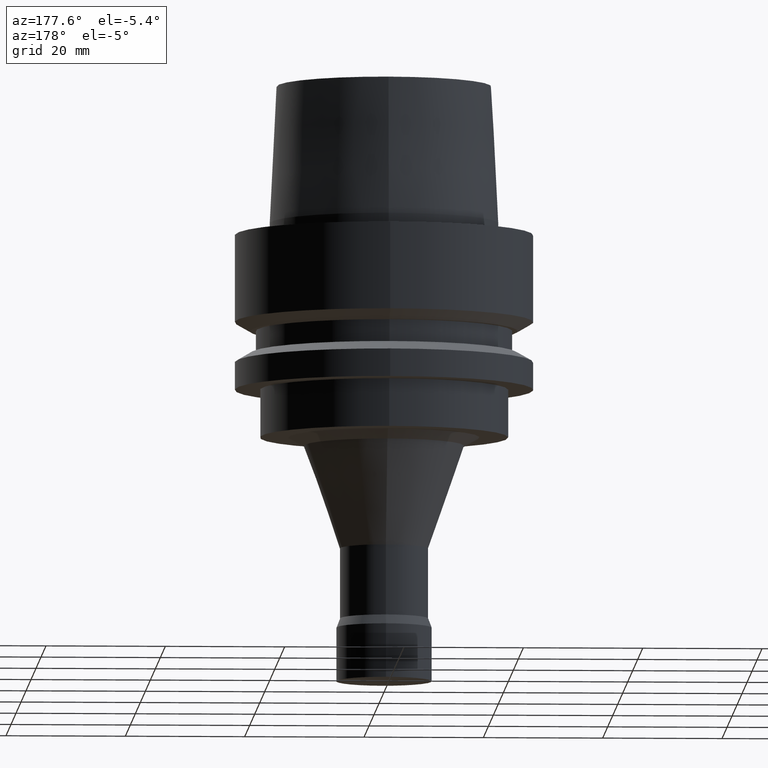
[diagram: clean part render]
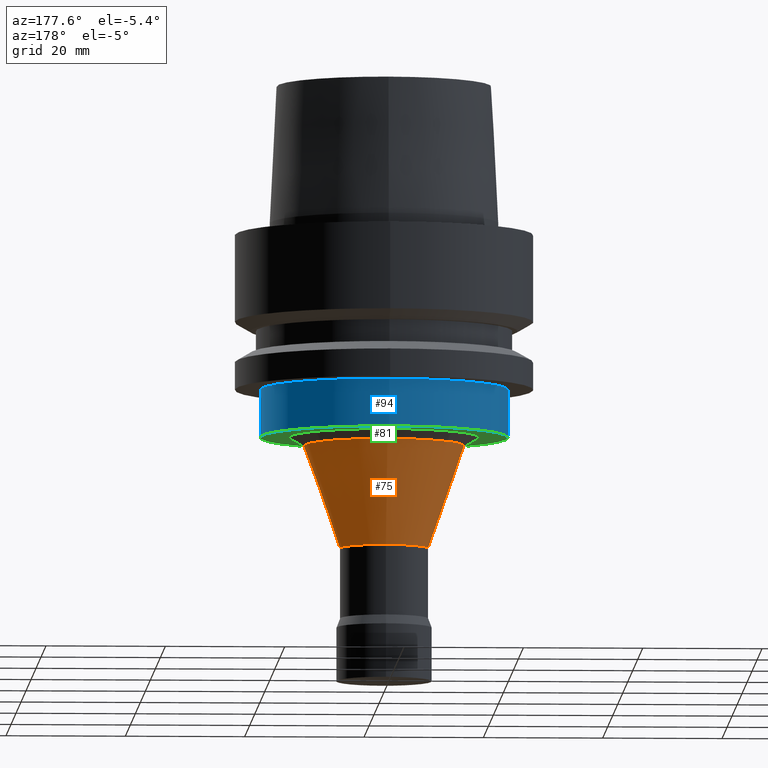
[diagram: same view with three faces highlighted in distinct colors, each labeled with its STEP entity id]
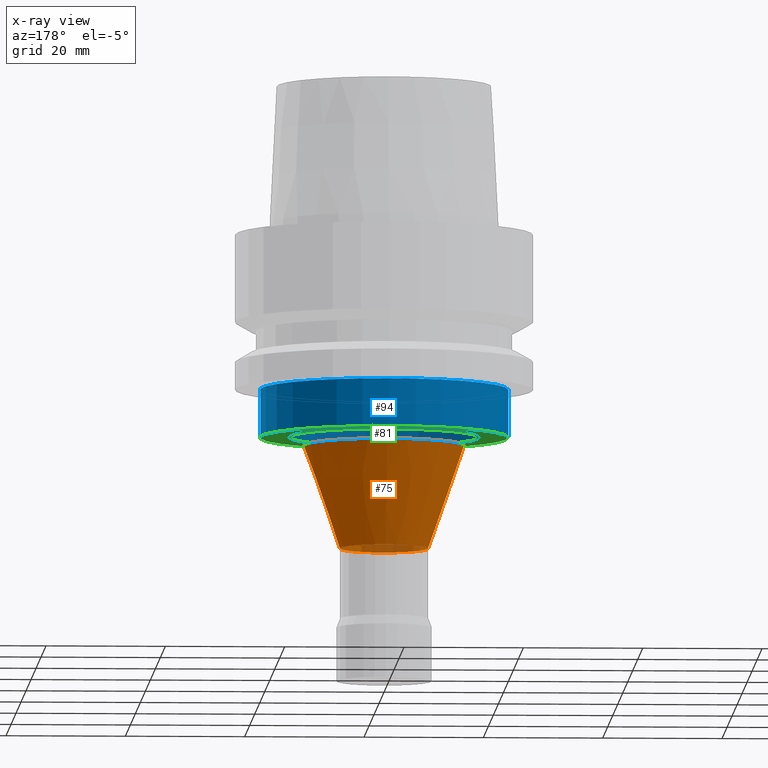
[diagram: x-ray of the same camera — body ghosted, the three highlighted faces saturated]
A machine part, auxiliary view with three faces highlighted in distinct colors.
The next image is the same camera in x-ray (body ghosted, the three faces saturated) — at least one of them is partly hidden behind the body in this view.
Their STEP definitions:

[orange] entity #75 — the highlighted conical surface has half-angle 19.327 deg.
#75=ADVANCED_FACE('',(#96,#97),#98,.T.);
#96=FACE_BOUND('',#154,.T.);
#97=FACE_BOUND('',#155,.T.);
#98=CONICAL_SURFACE('',#156,10.4225090496168,0.337313989636419);
#154=EDGE_LOOP('',(#212));
#155=EDGE_LOOP('',(#213));
#156=AXIS2_PLACEMENT_3D('',#214,#215,#216);
#212=ORIENTED_EDGE('',*,*,#310,.F.);
#213=ORIENTED_EDGE('',*,*,#311,.T.);
#214=CARTESIAN_POINT('',(2.69702672169328E-015,5.39405344338656E-015,-44.0457889339368));
#215=DIRECTION('',(-6.12323399573677E-017,-1.22464679914735E-016,1.0));
#216=DIRECTION('',(-1.23259516440783E-032,1.0,1.22464679914735E-016));
#310=EDGE_CURVE('',#329,#329,#330,.T.);
#311=EDGE_CURVE('',#331,#331,#332,.T.);
#329=VERTEX_POINT('',#367);
#330=CIRCLE('',#368,7.4);
#331=VERTEX_POINT('',#369);
#332=CIRCLE('',#370,13.4450180992336);
#367=CARTESIAN_POINT('',(3.22473130857002E-015,7.40000000000001,-52.66385885));
#368=AXIS2_PLACEMENT_3D('',#405,#406,#407);
#369=CARTESIAN_POINT('',(2.16932213481654E-015,13.4450180992336,-35.4277190178736));
#370=AXIS2_PLACEMENT_3D('',#408,#409,#410);
#405=CARTESIAN_POINT('',(3.22473130857002E-015,6.44946261714005E-015,-52.66385885));
#406=DIRECTION('',(6.12323399573677E-017,1.22464679914735E-016,-1.0));
#407=DIRECTION('',(-1.23259516440783E-032,1.0,1.22464679914735E-016));
#408=CARTESIAN_POINT('',(2.16932213481654E-015,4.33864426963307E-015,-35.4277190178736));
#409=DIRECTION('',(6.12323399573677E-017,1.22464679914735E-016,-1.0));
#410=DIRECTION('',(-1.23259516440783E-032,1.0,1.22464679914735E-016));

[blue] entity #94 — the highlighted cylindrical surface (bore or boss wall) has radius 20.8 mm, axis along (-0, -0, 1).
#94=ADVANCED_FACE('',(#151,#152),#153,.T.);
#151=FACE_BOUND('',#209,.T.);
#152=FACE_BOUND('',#210,.T.);
#153=CYLINDRICAL_SURFACE('',#211,20.8);
#209=EDGE_LOOP('',(#305));
#210=EDGE_LOOP('',(#306));
#211=AXIS2_PLACEMENT_3D('',#307,#308,#309);
#305=ORIENTED_EDGE('',*,*,#316,.F.);
#306=ORIENTED_EDGE('',*,*,#328,.T.);
#307=CARTESIAN_POINT('',(1.83697019872103E-015,3.67394039744206E-015,-30.0));
#308=DIRECTION('',(-6.12323399573677E-017,-1.22464679914735E-016,1.0));
#309=DIRECTION('',(-1.23259516440783E-032,1.0,1.22464679914735E-016));
#316=EDGE_CURVE('',#341,#341,#342,.T.);
#328=EDGE_CURVE('',#365,#365,#366,.T.);
#341=VERTEX_POINT('',#379);
#342=CIRCLE('',#380,20.8);
#365=VERTEX_POINT('',#403);
#366=CIRCLE('',#404,20.8);
#379=CARTESIAN_POINT('',(2.0818995585505E-015,20.8,-34.0));
#380=AXIS2_PLACEMENT_3D('',#423,#424,#425);
#403=CARTESIAN_POINT('',(1.59204083889156E-015,20.8,-26.0));
#404=AXIS2_PLACEMENT_3D('',#459,#460,#461);
#423=CARTESIAN_POINT('',(2.0818995585505E-015,4.163799117101E-015,-34.0));
#424=DIRECTION('',(6.12323399573677E-017,1.22464679914735E-016,-1.0));
#425=DIRECTION('',(-1.23259516440783E-032,1.0,1.22464679914735E-016));
#459=CARTESIAN_POINT('',(1.59204083889156E-015,3.18408167778312E-015,-26.0));
#460=DIRECTION('',(6.12323399573677E-017,1.22464679914735E-016,-1.0));
#461=DIRECTION('',(-1.23259516440783E-032,1.0,1.22464679914735E-016));

[green] entity #81 — the highlighted planar face has unit normal (0, 0, -1).
#81=ADVANCED_FACE('',(#113,#114),#115,.T.);
#113=FACE_BOUND('',#171,.T.);
#114=FACE_OUTER_BOUND('',#172,.T.);
#115=PLANE('',#173);
#171=EDGE_LOOP('',(#241));
#172=EDGE_LOOP('',(#242));
#173=AXIS2_PLACEMENT_3D('',#243,#244,#245);
#241=ORIENTED_EDGE('',*,*,#315,.T.);
#242=ORIENTED_EDGE('',*,*,#316,.T.);
#243=CARTESIAN_POINT('',(2.0818995585505E-015,8.0,-34.0));
#244=DIRECTION('',(6.12323399573677E-017,1.22464679914735E-016,-1.0));
#245=DIRECTION('',(-1.23259516440783E-032,1.0,1.22464679914735E-016));
#315=EDGE_CURVE('',#339,#339,#340,.T.);
#316=EDGE_CURVE('',#341,#341,#342,.T.);
#339=VERTEX_POINT('',#377);
#340=CIRCLE('',#378,16.0);
#341=VERTEX_POINT('',#379);
#342=CIRCLE('',#380,20.8);
#377=CARTESIAN_POINT('',(2.0818995585505E-015,16.0,-34.0));
#378=AXIS2_PLACEMENT_3D('',#420,#421,#422);
#379=CARTESIAN_POINT('',(2.0818995585505E-015,20.8,-34.0));
#380=AXIS2_PLACEMENT_3D('',#423,#424,#425);
#420=CARTESIAN_POINT('',(2.0818995585505E-015,4.163799117101E-015,-34.0));
#421=DIRECTION('',(-6.12323399573677E-017,-1.22464679914735E-016,1.0));
#422=DIRECTION('',(-1.23259516440783E-032,1.0,1.22464679914735E-016));
#423=CARTESIAN_POINT('',(2.0818995585505E-015,4.163799117101E-015,-34.0));
#424=DIRECTION('',(6.12323399573677E-017,1.22464679914735E-016,-1.0));
#425=DIRECTION('',(-1.23259516440783E-032,1.0,1.22464679914735E-016));